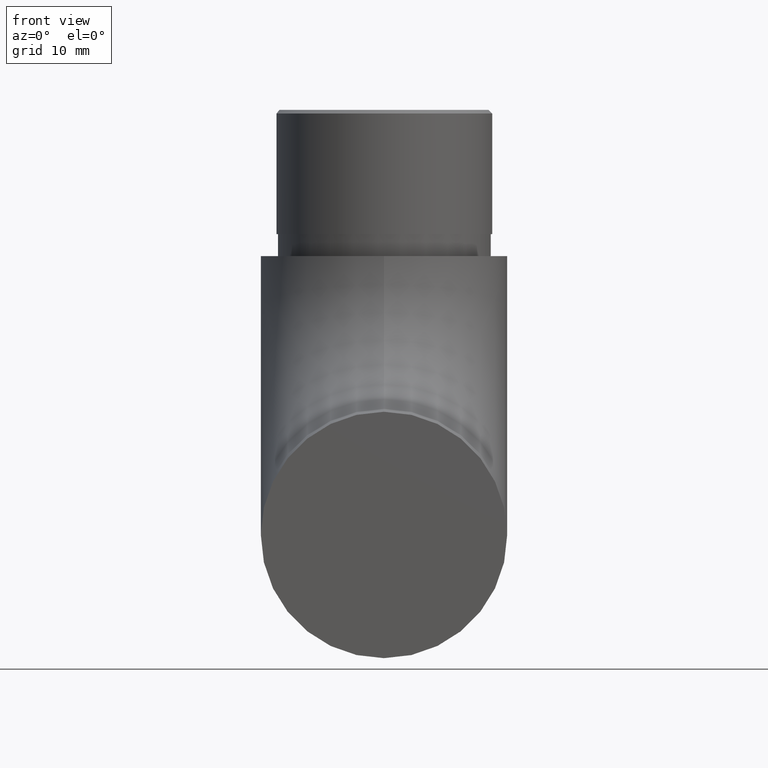
[diagram: clean part render]
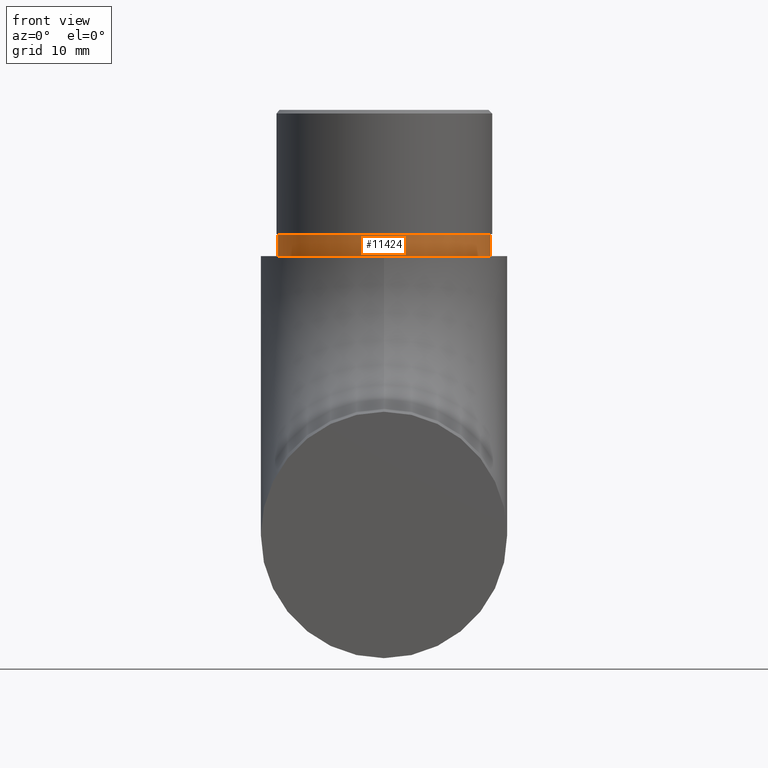
[diagram: same view with one face highlighted and labeled with its STEP entity id]
A machine part, front view. The second image highlights one B-rep face of the part: STEP entity #11424.
In plain terms, the highlighted cylindrical surface (bore or boss wall) has radius 14.6 mm, axis along (-0, -0, -1).
Its self-contained STEP definition (entity closure, byte-faithful):
#348 = FACE_OUTER_BOUND ( 'NONE', #4887, .T. ) ;
#684 = CIRCLE ( 'NONE', #8669, 14.60000000000000000 ) ;
#999 = ORIENTED_EDGE ( 'NONE', *, *, #6029, .T. ) ;
#1160 = DIRECTION ( 'NONE',  ( 0.0000000000000000000, 0.0000000000000000000, 1.000000000000000000 ) ) ;
#1658 = CARTESIAN_POINT ( 'NONE',  ( 14.60000000000000000, 40.14999999999999900, 38.14999999999999900 ) ) ;
#1684 = DIRECTION ( 'NONE',  ( 0.0000000000000000000, 0.0000000000000000000, 1.000000000000000000 ) ) ;
#1698 = EDGE_CURVE ( 'NONE', #9616, #9616, #7604, .T. ) ;
#1764 = EDGE_LOOP ( 'NONE', ( #999 ) ) ;
#2045 = VERTEX_POINT ( 'NONE', #1658 ) ;
#2632 = CYLINDRICAL_SURFACE ( 'NONE', #10788, 14.60000000000000000 ) ;
#2940 = CARTESIAN_POINT ( 'NONE',  ( 0.0000000000000000000, 40.14999999999999900, 41.14999999999999900 ) ) ;
#3672 = DIRECTION ( 'NONE',  ( -0.0000000000000000000, -0.0000000000000000000, -1.000000000000000000 ) ) ;
#4055 = ORIENTED_EDGE ( 'NONE', *, *, #1698, .F. ) ;
#4521 = CARTESIAN_POINT ( 'NONE',  ( 0.0000000000000000000, 40.14999999999999900, 38.14999999999999900 ) ) ;
#4887 = EDGE_LOOP ( 'NONE', ( #4055 ) ) ;
#6029 = EDGE_CURVE ( 'NONE', #2045, #2045, #684, .T. ) ;
#6433 = CARTESIAN_POINT ( 'NONE',  ( 0.0000000000000000000, 40.14999999999999900, 41.14999999999999900 ) ) ;
#7369 = DIRECTION ( 'NONE',  ( -1.000000000000000000, 0.0000000000000000000, 0.0000000000000000000 ) ) ;
#7604 = CIRCLE ( 'NONE', #11291, 14.60000000000000000 ) ;
#8669 = AXIS2_PLACEMENT_3D ( 'NONE', #4521, #1684, #10802 ) ;
#9390 = DIRECTION ( 'NONE',  ( 1.000000000000000000, 0.0000000000000000000, 0.0000000000000000000 ) ) ;
#9616 = VERTEX_POINT ( 'NONE', #11752 ) ;
#9896 = FACE_OUTER_BOUND ( 'NONE', #1764, .T. ) ;
#10788 = AXIS2_PLACEMENT_3D ( 'NONE', #6433, #3672, #7369 ) ;
#10802 = DIRECTION ( 'NONE',  ( 1.000000000000000000, 0.0000000000000000000, 0.0000000000000000000 ) ) ;
#11291 = AXIS2_PLACEMENT_3D ( 'NONE', #2940, #1160, #9390 ) ;
#11424 = ADVANCED_FACE ( 'NONE', ( #348, #9896 ), #2632, .T. ) ;
#11752 = CARTESIAN_POINT ( 'NONE',  ( 14.60000000000000000, 40.14999999999999900, 41.14999999999999900 ) ) ;